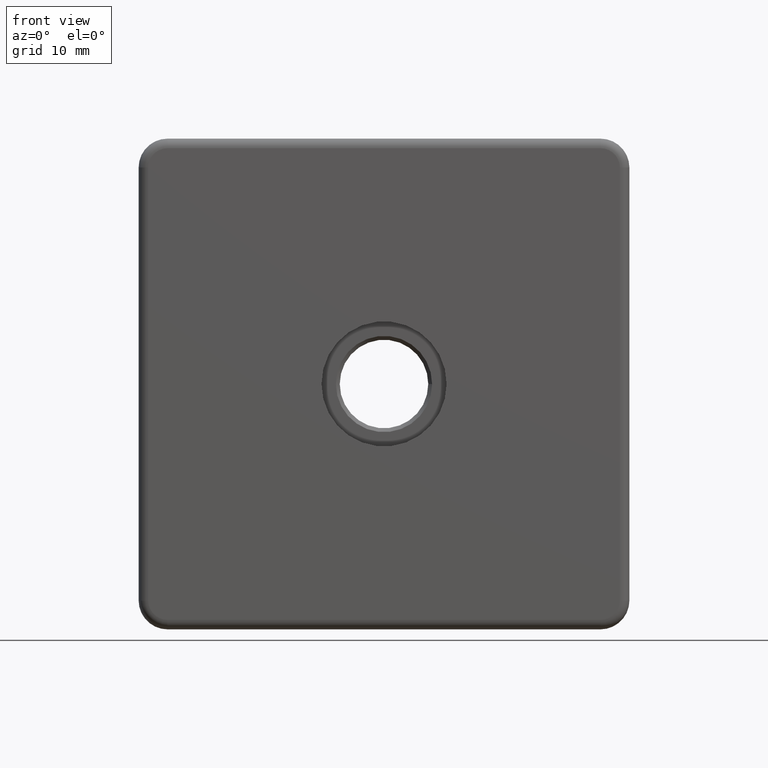
[diagram: clean part render]
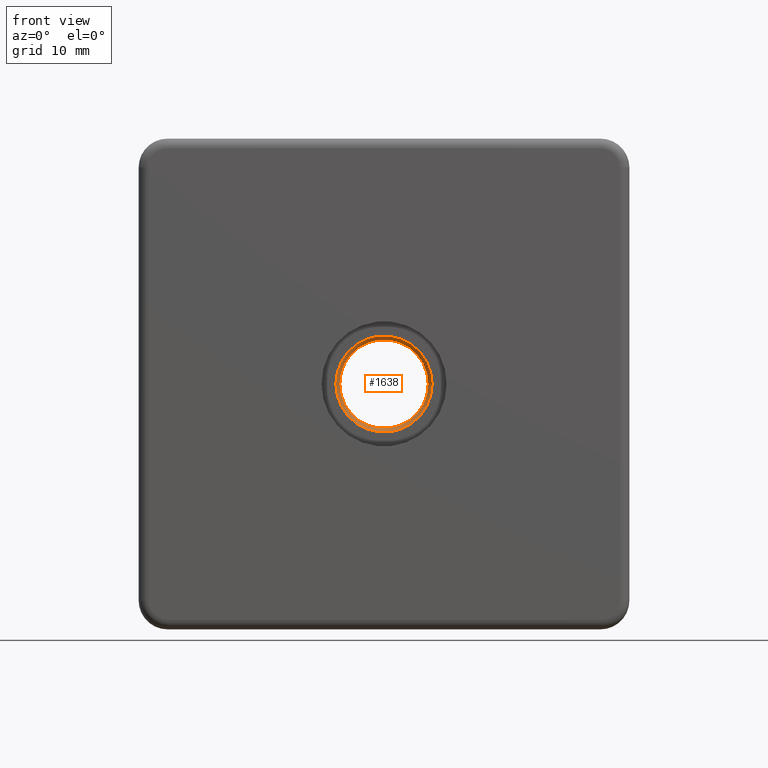
[diagram: same view with one face highlighted and labeled with its STEP entity id]
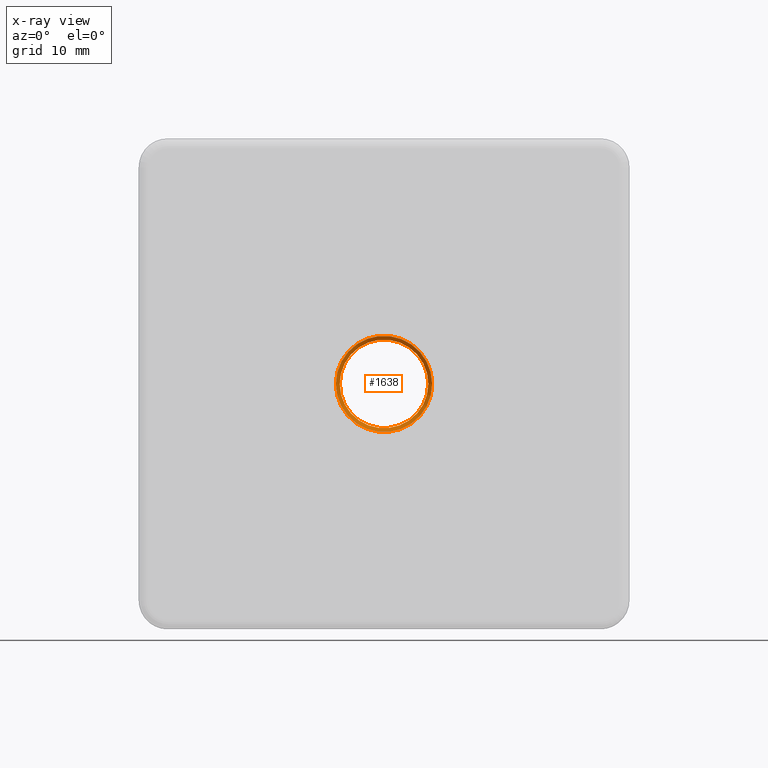
[diagram: x-ray of the same camera — body ghosted, the highlighted face saturated]
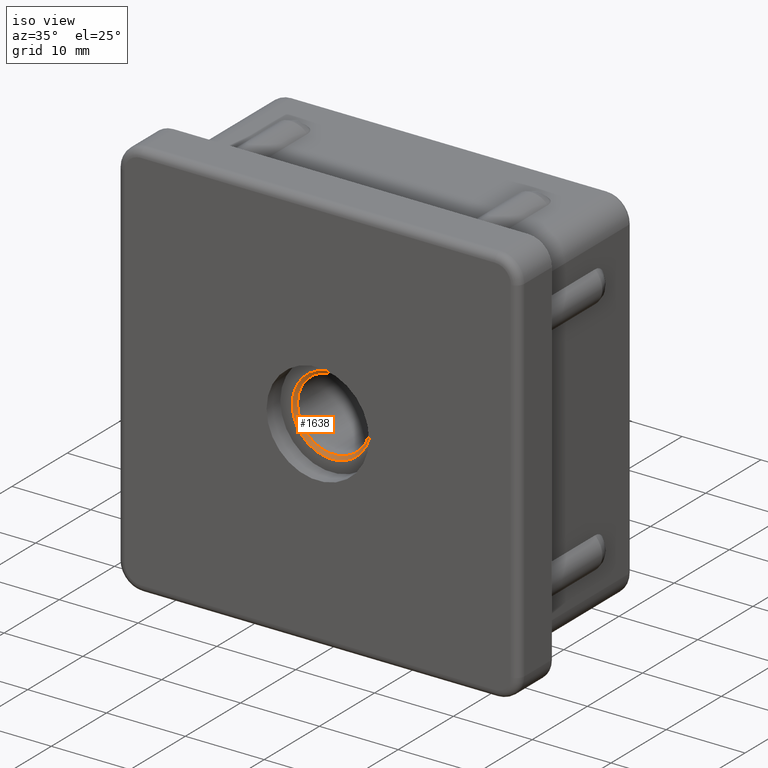
[diagram: same view with one face highlighted and labeled with its STEP entity id]
A machine part, front view. The second image highlights one B-rep face of the part: STEP entity #1638.
The next image is the same camera in x-ray: the body ghosted, the highlighted face saturated — about 0% of this face is hidden behind the body in this view.
A second angle (iso view) of the same face is appended — the face is thin or edge-on in the first view.
In plain terms, the highlighted conical surface has half-angle 45 deg.
Its self-contained STEP definition (entity closure, byte-faithful):
#15=CONICAL_SURFACE('',#1800,4.8,45.);
#31=FACE_BOUND('',#366,.T.);
#153=CIRCLE('',#1801,5.);
#154=CIRCLE('',#1802,4.6);
#272=FACE_OUTER_BOUND('',#365,.T.);
#365=EDGE_LOOP('',(#1523));
#366=EDGE_LOOP('',(#1524));
#823=VERTEX_POINT('',#3998);
#824=VERTEX_POINT('',#4000);
#1063=EDGE_CURVE('',#823,#823,#153,.T.);
#1064=EDGE_CURVE('',#824,#824,#154,.T.);
#1523=ORIENTED_EDGE('',*,*,#1063,.F.);
#1524=ORIENTED_EDGE('',*,*,#1064,.F.);
#1638=ADVANCED_FACE('',(#272,#31),#15,.F.);
#1800=AXIS2_PLACEMENT_3D('',#3997,#2251,#2252);
#1801=AXIS2_PLACEMENT_3D('',#3999,#2253,#2254);
#1802=AXIS2_PLACEMENT_3D('',#4001,#2255,#2256);
#2251=DIRECTION('center_axis',(0.,-1.,0.));
#2252=DIRECTION('ref_axis',(1.,0.,0.));
#2253=DIRECTION('center_axis',(0.,1.,0.));
#2254=DIRECTION('ref_axis',(1.,0.,0.));
#2255=DIRECTION('center_axis',(0.,-1.,0.));
#2256=DIRECTION('ref_axis',(1.,0.,0.));
#3997=CARTESIAN_POINT('Origin',(0.,-3.3,0.));
#3998=CARTESIAN_POINT('',(5.,-3.5,0.));
#3999=CARTESIAN_POINT('Origin',(0.,-3.5,0.));
#4000=CARTESIAN_POINT('',(4.6,-3.1,0.));
#4001=CARTESIAN_POINT('Origin',(0.,-3.1,0.));